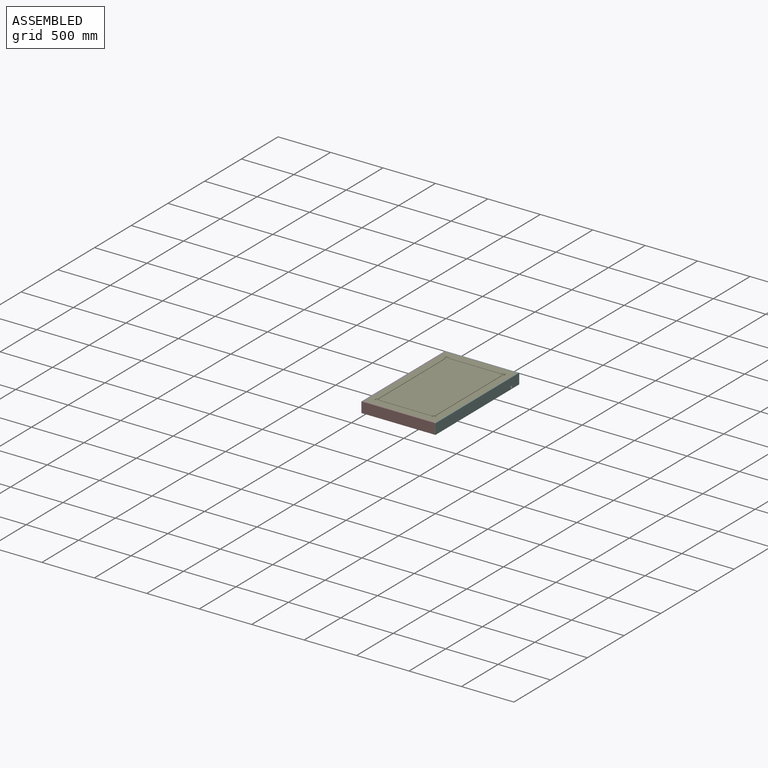
[diagram: assembled view]
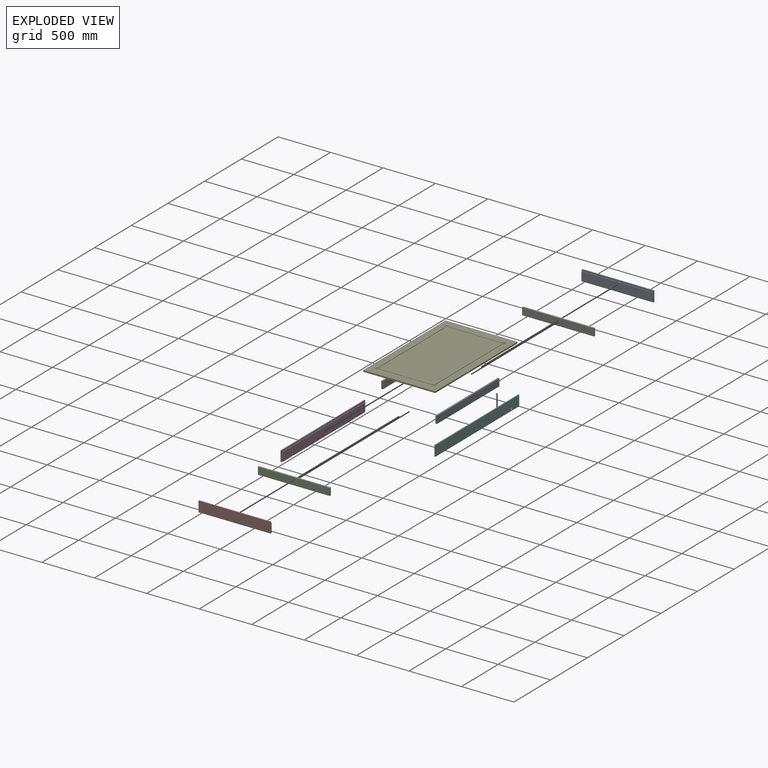
[diagram: exploded view]
GUIDED TOUR — MATED ASSEMBLY (Onshape document 020ee80df3ef35d1d4273c43, AutoMate assembly 020ee80df3ef35d1d4273c43_f7bb5acef65902458bad54ec_339e36d5d84220e9abc725ad_default)

This assembly has 9 components, labeled P0..P8 below (a component is one placed occurrence of a part; the same part can appear more than once), held together by 24 mates. A mate is a constraint between two components; its type names the relative motion it leaves free:
  PLANAR — leaves sliding in the plane through the listed point (normal = the listed direction) and rotation about that normal free.
Axis/direction vectors are unit vectors and 'through' points are millimeter coordinates, both in the assembly's world frame.

MATES
  1. PLANAR "Planar 12": P2 <-> P3, direction (0.000, 1.000, 0.000) through (-233.35, -524.04, 48.74) mm
  2. PLANAR "Planar 21": P8 <-> P2, direction (-1.000, 0.000, 0.000) through (320.65, -104.04, 48.74) mm
  3. PLANAR "Planar 18": P1 <-> P2, direction (0.000, 0.000, 1.000) through (-186.85, -104.04, 83.74) mm
  4. PLANAR "Planar 2": P7 <-> P3, direction (0.000, 1.000, 0.000) through (70.65, -659.04, 41.24) mm
  5. PLANAR "Planar 6": P5 <-> P7, direction (0.000, 0.000, 1.000) through (418.65, -104.04, 98.74) mm
  6. PLANAR "Planar 15": P6 <-> P5, direction (1.000, 0.000, 0.000) through (413.65, 323.46, 48.74) mm
  7. PLANAR "Planar 24": P4 <-> P0, direction (0.000, 1.000, 0.000) through (70.65, 455.96, 91.24) mm
  8. PLANAR "Planar 9": P0 <-> P5, direction (0.000, 0.000, 1.000) through (70.65, 460.96, 98.74) mm
  9. PLANAR "Planar 7": P0 <-> P5, direction (0.000, -1.000, 0.000) through (413.65, 450.96, 41.24) mm
  10. PLANAR "Planar 22": P4 <-> P3, direction (0.000, 0.000, -1.000) through (70.55, -104.20, 83.74) mm
  11. PLANAR "Planar 10": P2 <-> P3, direction (-1.000, 0.000, 0.000) through (-272.35, -531.54, 48.74) mm
  12. PLANAR "Planar 13": P6 <-> P5, direction (0.000, -1.000, 0.000) through (374.65, 315.96, 48.74) mm
  13. PLANAR "Planar 23": P4 <-> P5, direction (1.000, 0.000, 0.000) through (413.65, -104.04, 91.24) mm
  14. PLANAR "Planar 4": P5 <-> P7, direction (-1.000, 0.000, 0.000) through (413.65, -104.04, 79.75) mm
  15. PLANAR "Planar 14": P6 <-> P5, direction (0.000, 0.000, 1.000) through (374.65, 315.96, 83.74) mm
  16. PLANAR "Planar 20": P8 <-> P2, direction (0.000, -1.000, 0.000) through (328.15, -529.04, 48.74) mm
  17. PLANAR "Planar 8": P0 <-> P5, direction (1.000, 0.000, 0.000) through (413.65, 450.96, -1.26) mm
  18. PLANAR "Planar 5": P5 <-> P7, direction (0.000, -1.000, 0.000) through (411.15, -659.04, 41.24) mm
  19. PLANAR "Planar 3": P7 <-> P3, direction (-1.000, 0.000, 0.000) through (-272.35, -666.80, 46.50) mm
  20. PLANAR "Planar 16": P1 <-> P2, direction (0.000, -1.000, 0.000) through (-186.85, -529.04, 48.74) mm
  21. PLANAR "Planar 19": P8 <-> P6, direction (0.000, 0.000, 1.000) through (328.15, -104.04, 83.74) mm
  22. PLANAR "Planar 11": P2 <-> P3, direction (0.000, 0.000, 1.000) through (70.65, -531.61, 83.74) mm
  23. PLANAR "Planar 1": P7 <-> P3, direction (0.000, 0.000, 1.000) through (70.65, -669.04, 98.74) mm
  24. PLANAR "Planar 17": P1 <-> P2, direction (1.000, 0.000, 0.000) through (-179.35, -104.04, 48.74) mm

ASSEMBLY ORDER
  1. P8 — the base component [order verified]
  2. P1 [order verified]
  3. P3 [order verified]
  4. P4 [order verified]
  5. P5 [order verified]
  6. P6 [order verified]
  7. P2 [order verified]
  8. P0 [order verified]
  9. P7 [order verified]
Order-tag legend:
  [order verified] — this step's position reverses a verified removal order: the component was checked to insert without passing through the ones already placed.

Of the 9 components, 3 carry the full construction recipe — the FeatureScript program that regenerates the part's solid from scratch; the rest are supplied as boundary geometry only.
Each toured component is shown spotlighted twice — in the assembled view, then in the exploded view, where a leader line traces a displaced component back to its assembled socket (saturated green if recipe-attached, orange if geometry-only; every other component desaturated gray) — followed by its recipe or geometry summary and the mates that hold it.
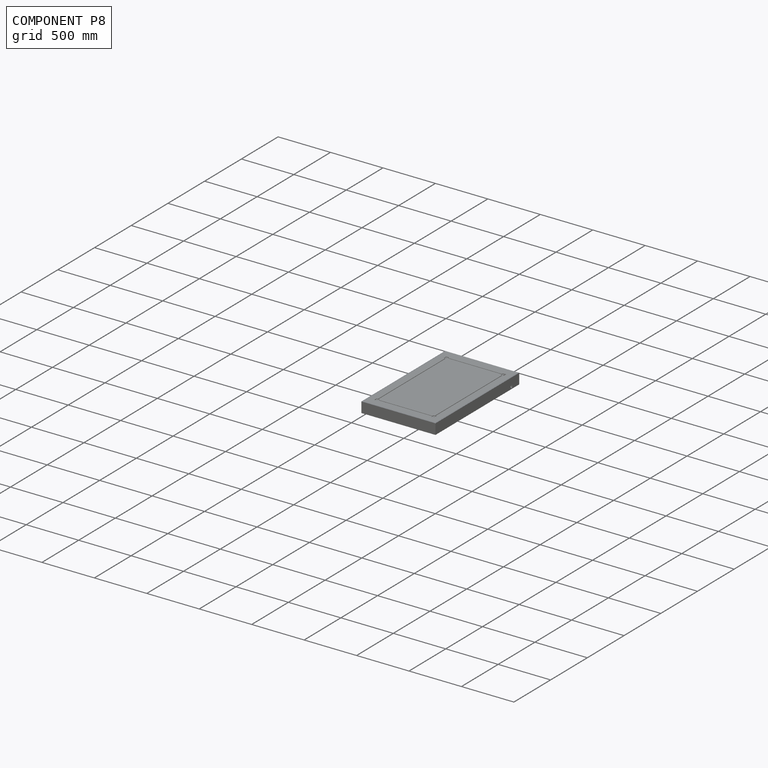
[diagram: component P8 — assembled]
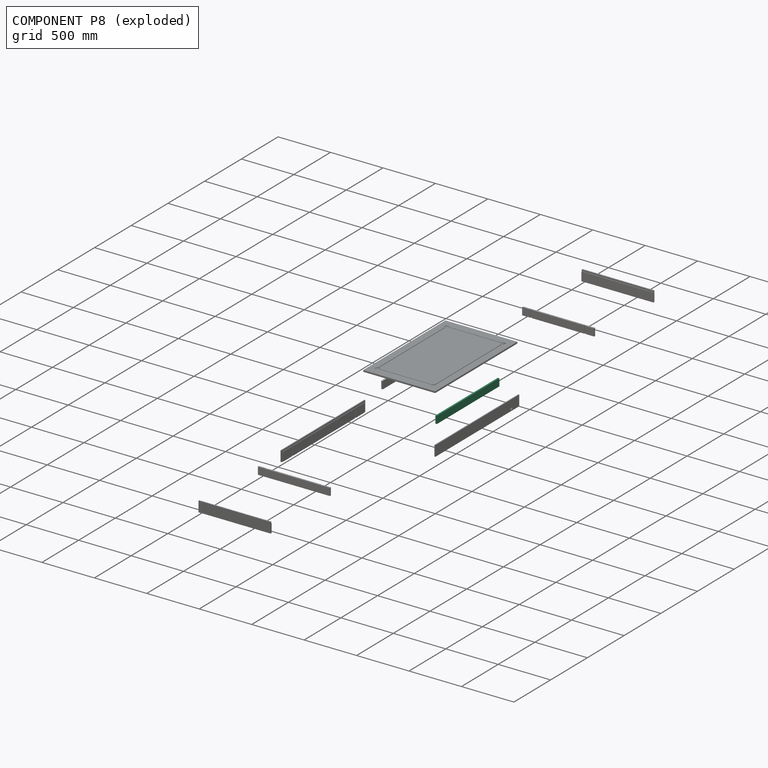
[diagram: component P8 — exploded]
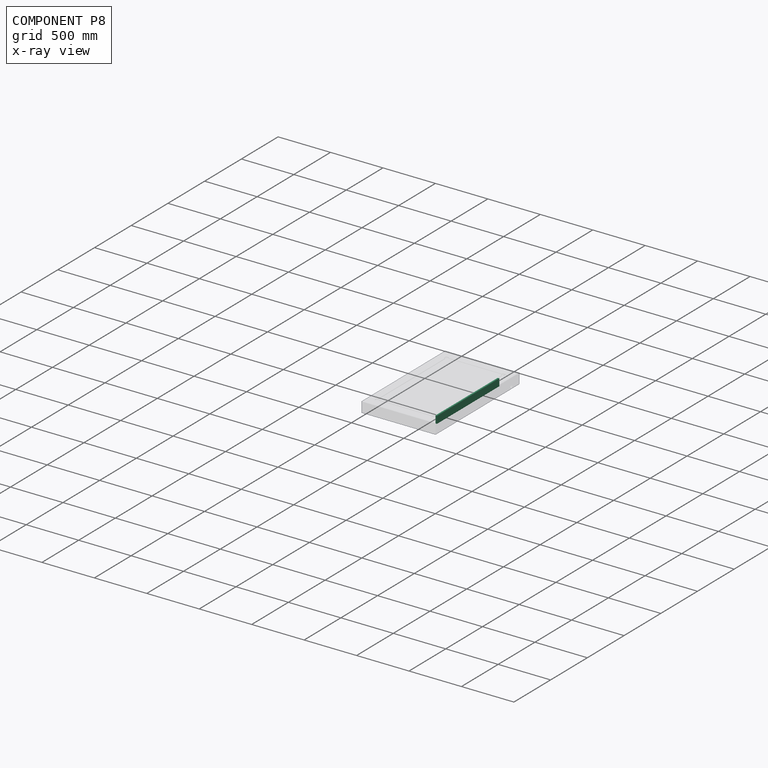
[diagram: component P8 — x-ray view]
COMPONENT P8 — same part as P1 (CADFS 00851103); its construction recipe is shown at P1.
Held by: PLANAR mate "Planar 21" to P2; PLANAR mate "Planar 20" to P2; PLANAR mate "Planar 19" to P6.
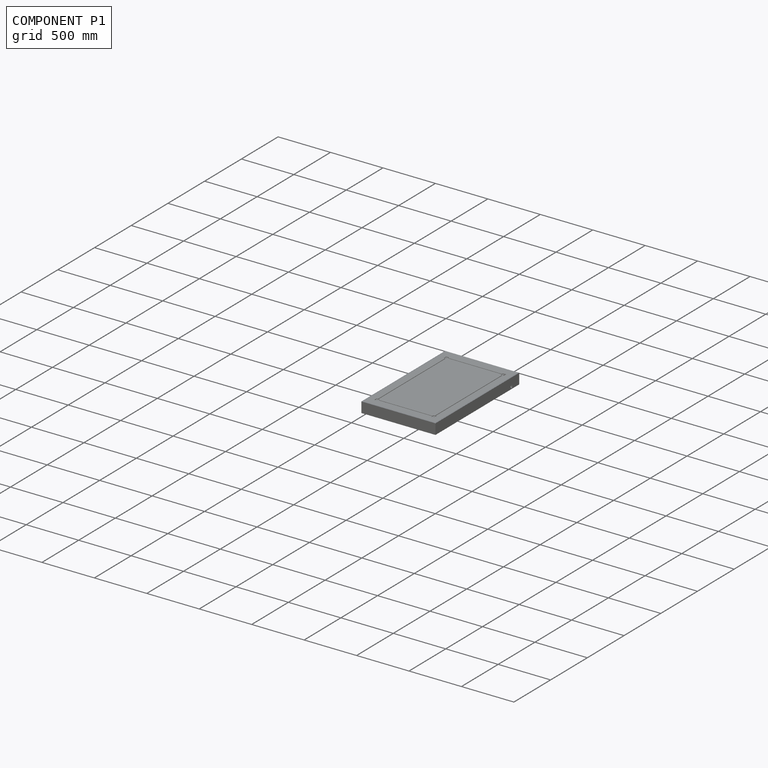
[diagram: component P1 — assembled]
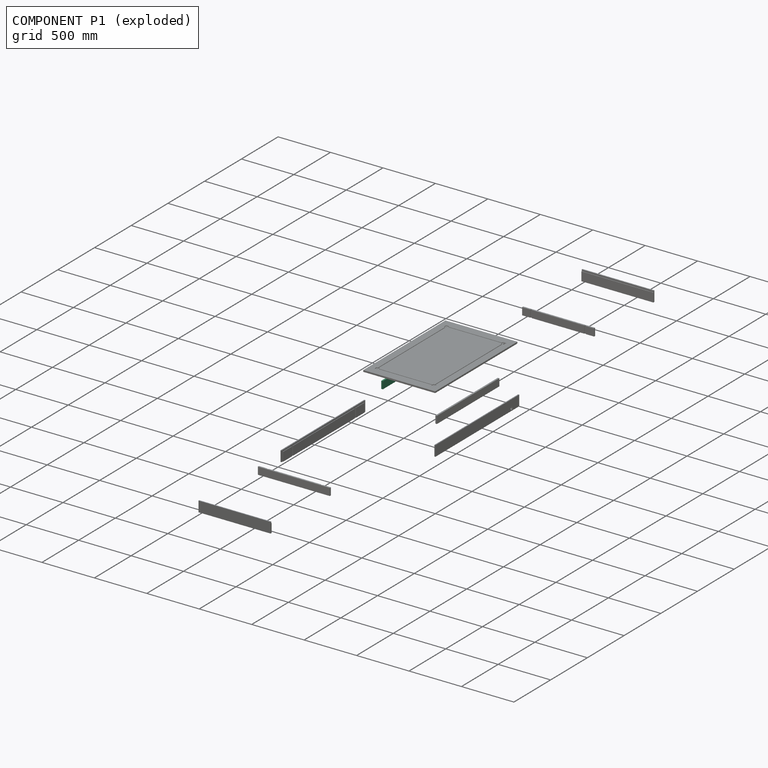
[diagram: component P1 — exploded]
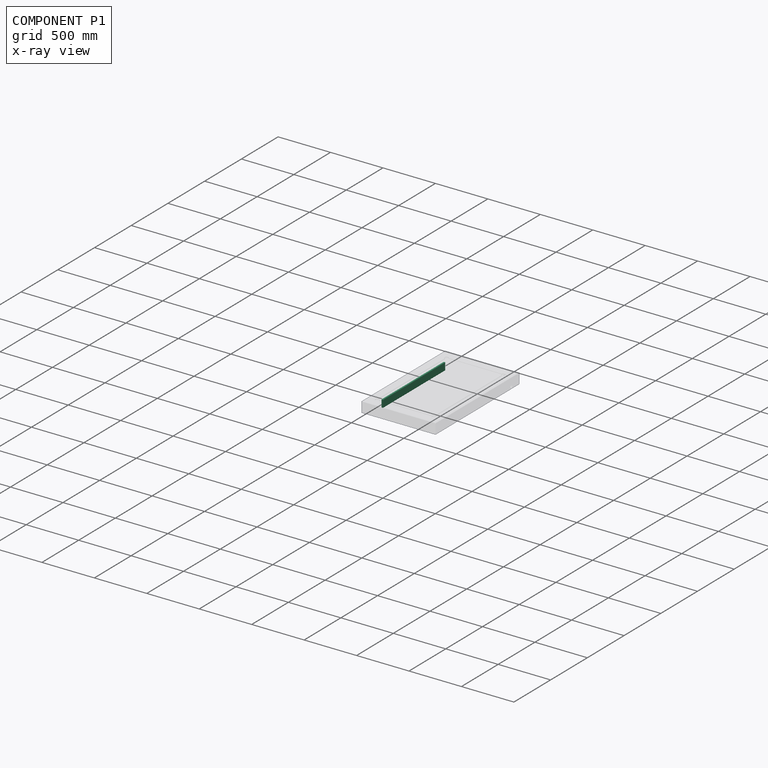
[diagram: component P1 — x-ray view]
COMPONENT P1 — recipe-attached (CADFS 00851103, mesh-verified: the recipe's output STEP matches this component's geometry to below the mesh-comparison resolution (tessellation chordal tolerance ~1.28 mm)).
Held by: PLANAR mate "Planar 18" to P2; PLANAR mate "Planar 16" to P2; PLANAR mate "Planar 17" to P2.
Construction recipe (FeatureScript — the CAD program that rebuilds this solid; sketch coordinates are in the units given by the * unit suffixes, e.g. mm):

FeatureScript 1511;
import(path : "onshape/std/geometry.fs", version : "1511.0");
import(path : "onshape/std/common.fs", version : "1511.0");
const mm = millimeter;
const VERTEX = EntityType.VERTEX;
const EDGE = EntityType.EDGE;
const FACE = EntityType.FACE;
const BODY = EntityType.BODY;
function v(x, y){return vector(x, y);}
function OD(order){return orderDisambiguation(order);}
function OSD(set){return originalSetDisambiguation(set);}
function TD(topology){return topologyDisambiguation(topology);}
function TDD(query){return trueDependencyDisambiguation(query);}
function sQuery(a, b, c) {return sketchEntityQuery(a, b, c);}

annotation { "Feature Type Name" : "Feature", "Feature Type Description" : "" }
export const myFeature = defineFeature(function(context is Context, id is Id, definition is map)
    precondition{}
    {
        {
            var Q0;
            Q0=qCreatedBy(makeId("Top.planeOp"),FACE);
            var sketch = newSketch(context, id + "F0", { "sketchPlane" : qUnion([Q0])});
            skLineSegment(sketch, "E0.bottom", {"start": v(-424.9, 7.5) * mm, "end": v(424.9, 7.5) * mm});
            skLineSegment(sketch, "E0.top", {"start": v(-424.9, -7.5) * mm, "end": v(424.9, -7.5) * mm});
            skLineSegment(sketch, "E0.left", {"start": v(-424.9, 7.5) * mm, "end": v(-424.9, -7.5) * mm});
            skLineSegment(sketch, "E0.right", {"start": v(424.9, 7.5) * mm, "end": v(424.9, -7.5) * mm});
            skSolve(sketch);
        }
        {
            var Q0;
            Q0=makeQuery(id+"F0.imprint","IMPRINT",FACE,{"disambiguationData":[TD([[makeQuery(id+"F0.imprint","IMPRINT",EDGE,{"derivedFrom":sQuery(id+"F0.wireOp",EDGE,"E0.bottom")}),-1.0]])]});
            extrude(context, id + "F1", {"entities" : qUnion([Q0]), "endBound" : BoundingType.SYMMETRIC, "depth" : 70 * mm, "offsetDistance" : 25 * mm});
        }
        {
            var Q0;
            Q0=qCreatedBy(makeId("Front.planeOp"),FACE);
            cPlane(context, id + "F2", {"entities" : qUnion([Q0]), "cplaneType" : CPlaneType.OFFSET, "offset" : 25 * mm, "oppositeDirection" : true, "width" : 150 * mm, "height" : 150 * mm});
        }
    });
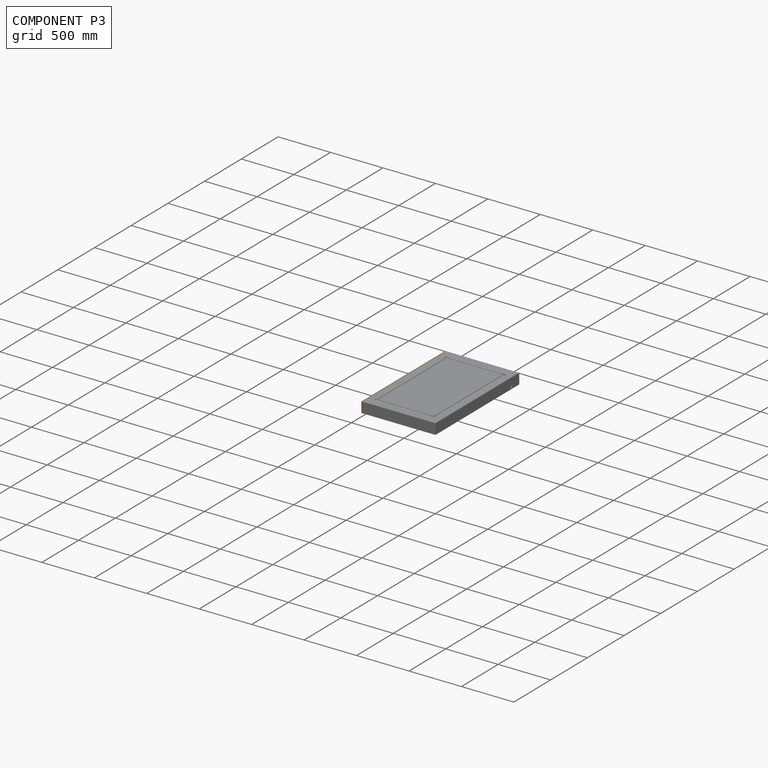
[diagram: component P3 — assembled]
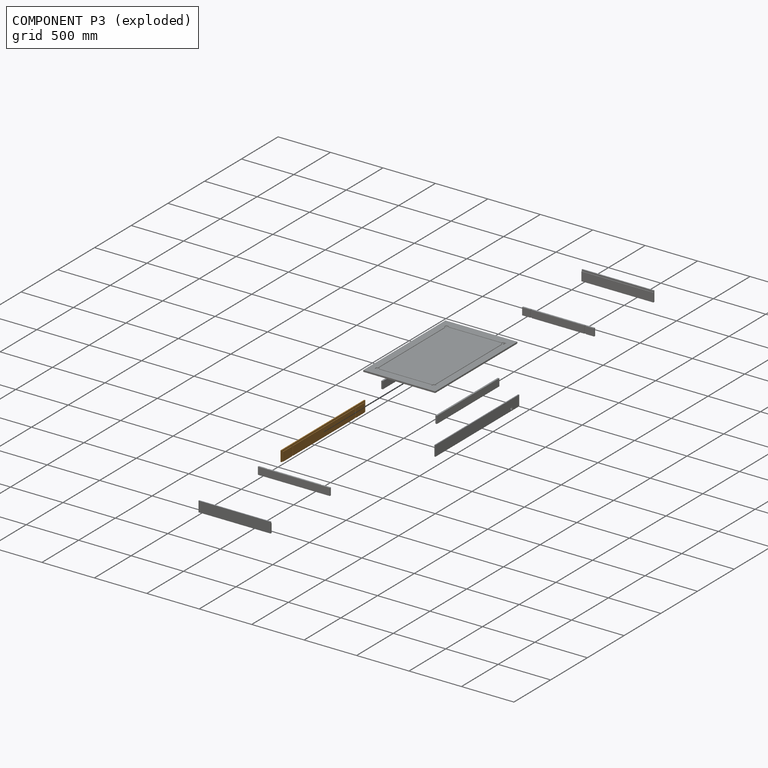
[diagram: component P3 — exploded]
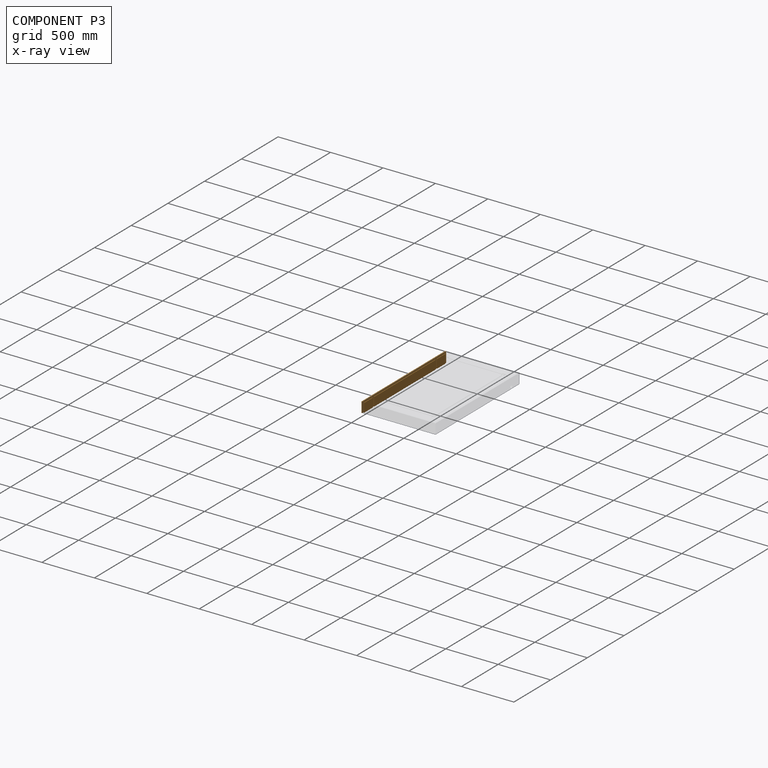
[diagram: component P3 — x-ray view]
COMPONENT P3 — geometry summary (no construction recipe available for this part):
  bounding box: 1140.0 x 100.0 x 15.0 mm
  B-rep topology: 1 solid, 18 faces, 96 edges
  volume: 1599000 mm^3 (94% of its bounding box)
  symmetry: 2-fold rotationally symmetric about the x axis; 2-fold rotationally symmetric about the y axis; 2-fold rotationally symmetric about the z axis; mirror-symmetric across its x mid-plane, y mid-plane, z mid-plane
Held by: PLANAR mate "Planar 12" to P2; PLANAR mate "Planar 2" to P7; PLANAR mate "Planar 22" to P4; PLANAR mate "Planar 10" to P2; PLANAR mate "Planar 3" to P7; PLANAR mate "Planar 11" to P2; PLANAR mate "Planar 1" to P7.
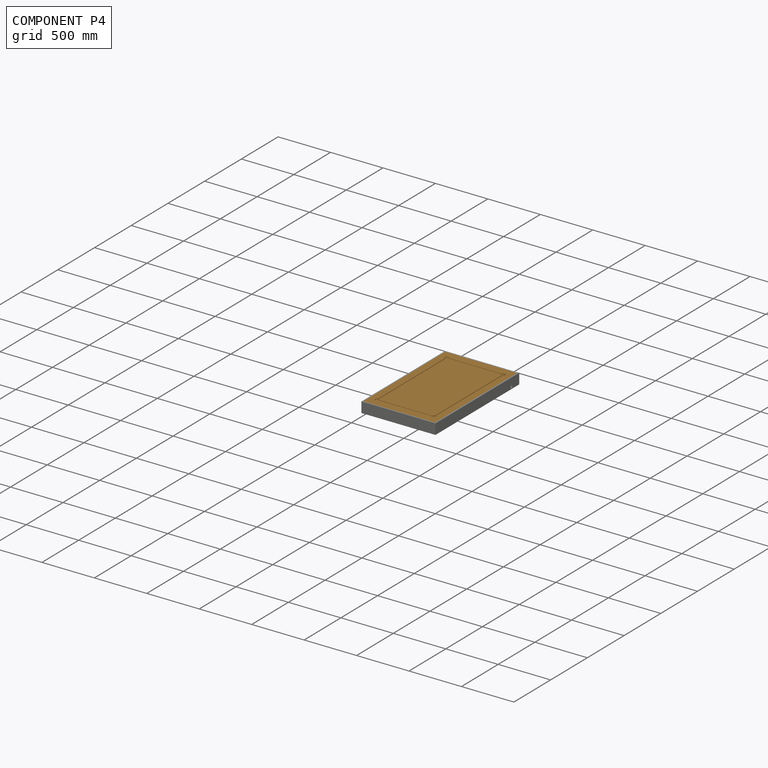
[diagram: component P4 — assembled]
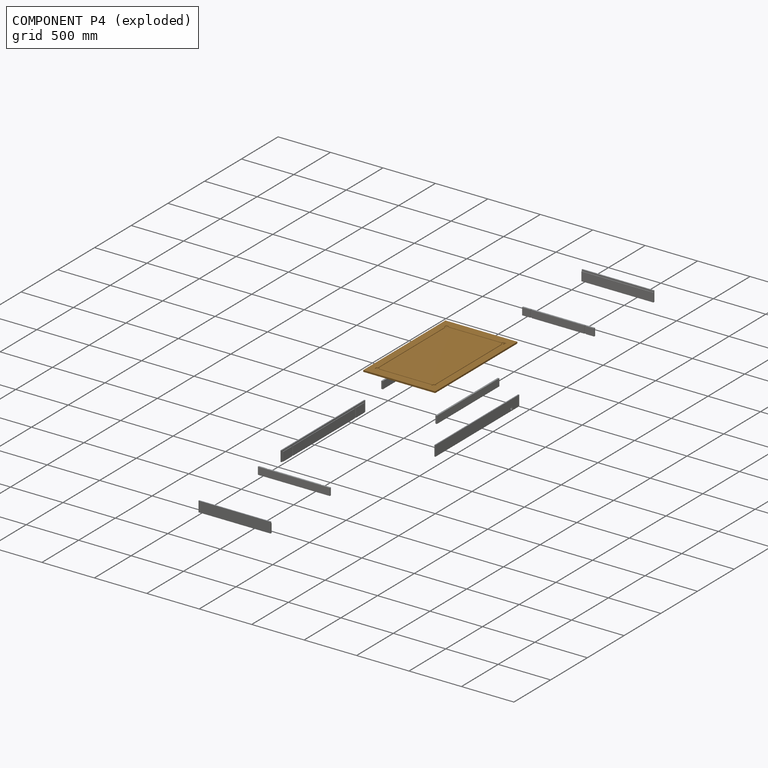
[diagram: component P4 — exploded]
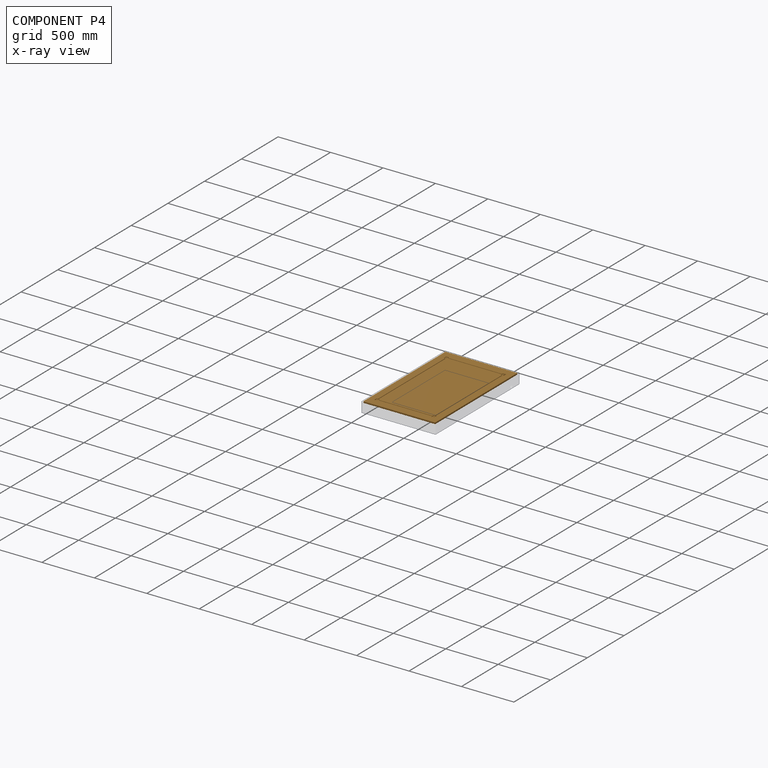
[diagram: component P4 — x-ray view]
COMPONENT P4 — geometry summary (no construction recipe available for this part):
  bounding box: 1120.0 x 686.0 x 15.0 mm
  B-rep topology: 1 solid, 67 faces, 378 edges
  volume: 11424114 mm^3 (99% of its bounding box)
  symmetry: 2-fold rotationally symmetric about the x axis; 2-fold rotationally symmetric about the y axis; 2-fold rotationally symmetric about the z axis; mirror-symmetric across its x mid-plane, y mid-plane, z mid-plane
Held by: PLANAR mate "Planar 24" to P0; PLANAR mate "Planar 22" to P3; PLANAR mate "Planar 23" to P5.
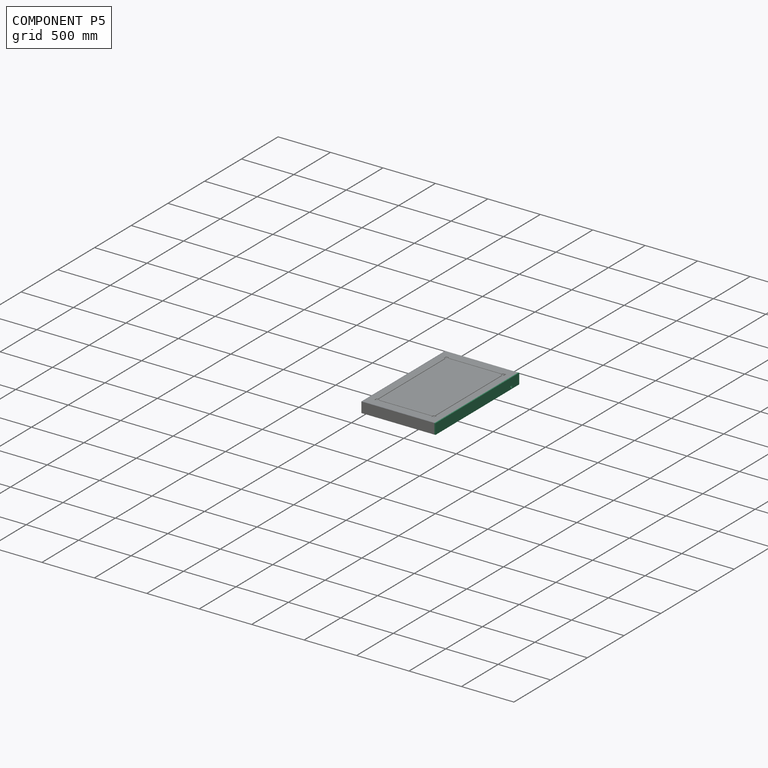
[diagram: component P5 — assembled]
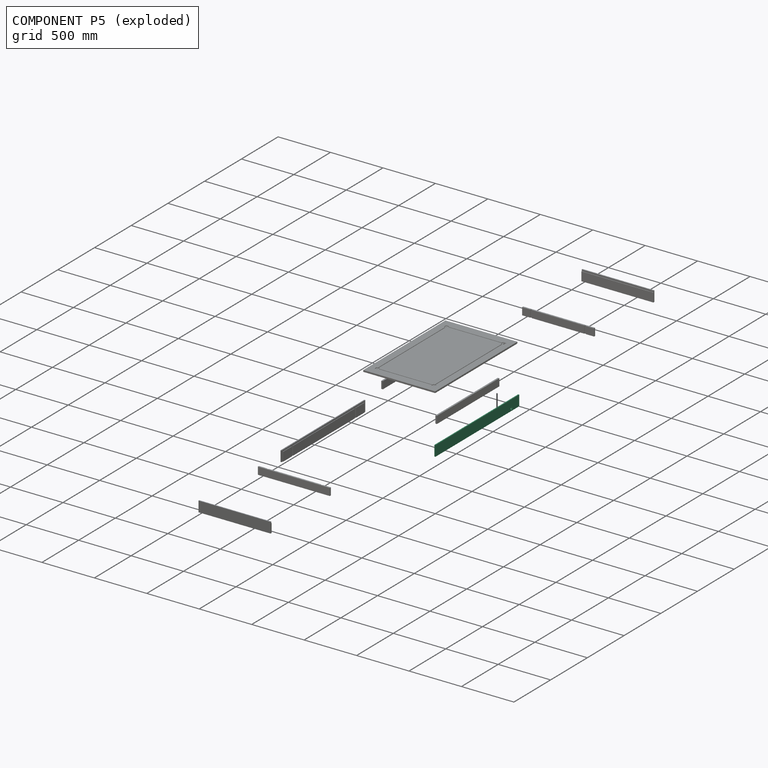
[diagram: component P5 — exploded]
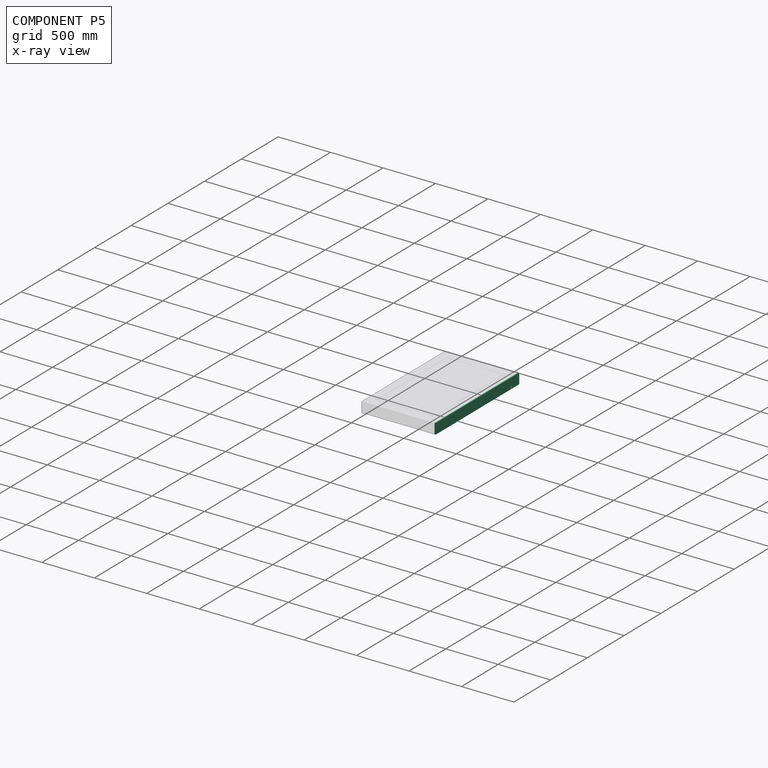
[diagram: component P5 — x-ray view]
COMPONENT P5 — recipe-attached (CADFS 00848395, mesh-verified: the recipe's output STEP matches this component's geometry to below the mesh-comparison resolution (tessellation chordal tolerance ~1.72 mm)).
Held by: PLANAR mate "Planar 6" to P7; PLANAR mate "Planar 15" to P6; PLANAR mate "Planar 9" to P0; PLANAR mate "Planar 7" to P0; PLANAR mate "Planar 13" to P6; PLANAR mate "Planar 23" to P4; PLANAR mate "Planar 4" to P7; PLANAR mate "Planar 14" to P6; PLANAR mate "Planar 8" to P0; PLANAR mate "Planar 5" to P7.
Construction recipe (FeatureScript — the CAD program that rebuilds this solid; sketch coordinates are in the units given by the * unit suffixes, e.g. mm):

FeatureScript 1511;
import(path : "onshape/std/geometry.fs", version : "1511.0");
import(path : "onshape/std/common.fs", version : "1511.0");
const mm = millimeter;
const VERTEX = EntityType.VERTEX;
const EDGE = EntityType.EDGE;
const FACE = EntityType.FACE;
const BODY = EntityType.BODY;
function v(x, y){return vector(x, y);}
function OD(order){return orderDisambiguation(order);}
function OSD(set){return originalSetDisambiguation(set);}
function TD(topology){return topologyDisambiguation(topology);}
function TDD(query){return trueDependencyDisambiguation(query);}
function sQuery(a, b, c) {return sketchEntityQuery(a, b, c);}

annotation { "Feature Type Name" : "Feature", "Feature Type Description" : "" }
export const myFeature = defineFeature(function(context is Context, id is Id, definition is map)
    precondition{}
    {
        {
            var Q0;
            Q0=qCreatedBy(makeId("Top.planeOp"),FACE);
            var sketch = newSketch(context, id + "F0", { "sketchPlane" : qUnion([Q0])});
            skLineSegment(sketch, "E0", {"start": v(0, 0) * mm, "end": v(0, -555) * mm});
            skLineSegment(sketch, "E1", {"start": v(0, -555) * mm, "end": v(-5, -555) * mm});
            skLineSegment(sketch, "E2", {"start": v(-5, -555) * mm, "end": v(-5, -570) * mm});
            skLineSegment(sketch, "E3", {"start": v(-5, -570) * mm, "end": v(-15, -570) * mm});
            skLineSegment(sketch, "E4", {"start": v(-15, -570) * mm, "end": v(-15, 0) * mm});
            skLineSegment(sketch, "E5", {"start": v(-15, 0) * mm, "end": v(0, 0) * mm});
            skSolve(sketch);
        }
        {
            var Q0;
            Q0=qSketchRegion(id+"F0",true);
            extrude(context, id + "F1", {"entities" : qUnion([Q0]), "endBound" : BoundingType.SYMMETRIC, "depth" : 100 * mm, "offsetDistance" : 25 * mm});
        }
        {
            var Q0;
            Q0=makeQuery(id+"F1.opExtrude","SWEPT_FACE",FACE,{"disambiguationData":[OSD([sQuery(id+"F0.wireOp",EDGE,"E0")])]});
            var sketch = newSketch(context, id + "F2", { "sketchPlane" : qUnion([Q0])});
            skLineSegment(sketch, "E6", {"start": v(-435.2, -50) * mm, "end": v(-435.2, 34.8) * mm});
            skLineSegment(sketch, "E7", {"start": v(-420, 34.8) * mm, "end": v(-420, -50) * mm});
            skLineSegment(sketch, "E8", {"start": v(-420, -50) * mm, "end": v(-435.2, -50) * mm});
            skLineSegment(sketch, "E9", {"start": v(-420, 34.8) * mm, "end": v(0, 34.8) * mm});
            skLineSegment(sketch, "E10", {"start": v(0, 34.8) * mm, "end": v(0, 50) * mm});
            skLineSegment(sketch, "E11", {"start": v(0, 50) * mm, "end": v(-555, 50) * mm});
            skLineSegment(sketch, "E12", {"start": v(-555, 50) * mm, "end": v(-555, 34.8) * mm});
            skLineSegment(sketch, "E13", {"start": v(-555, 34.8) * mm, "end": v(-435.2, 34.8) * mm});
            skSolve(sketch);
        }
        {
            var Q0;
            Q0=qSketchRegion(id+"F2",true);
            extrude(context, id + "F3", {"entities" : qUnion([Q0]), "operationType" : NewBodyOperationType.REMOVE, "oppositeDirection" : true, "depth" : 5 * mm, "offsetDistance" : 25 * mm});
        }
        {
            var Q0;
            Q0=makeQuery(id+"F1.opExtrude","SWEPT_BODY",BODY,{"disambiguationData":[OSD([sQuery(id+"F0.wireOp",EDGE,"E0"),sQuery(id+"F0.wireOp",EDGE,"E1"),sQuery(id+"F0.wireOp",EDGE,"E2"),sQuery(id+"F0.wireOp",EDGE,"E3"),sQuery(id+"F0.wireOp",EDGE,"E4"),sQuery(id+"F0.wireOp",EDGE,"E5")])]});
            var Q1;
            Q1=makeQuery(id+"F1.opExtrude","SWEPT_FACE",FACE,{"disambiguationData":[OSD([sQuery(id+"F0.wireOp",EDGE,"E5")])]});
            mirror(context, id + "F4", {"operationType" : NewBodyOperationType.ADD, "entities" : qUnion([Q0]), "mirrorPlane" : qUnion([Q1])});
        }
        {
            var Q0;
            {var subQ0=sQuery(id+"F0.wireOp",EDGE,"E1");var subQ1=sQuery(id+"F0.wireOp",EDGE,"E0");Q0=makeQuery(id+"F3.boolean.opBoolean","SPLIT",FACE,{"disambiguationData":[TD([makeQuery(id+"F1.opExtrude","SWEPT_FACE",FACE,{"disambiguationData":[OSD([subQ0])]})])],"derivedFrom":makeQuery(id+"F1.opExtrude","SWEPT_FACE",FACE,{"disambiguationData":[OSD([subQ1])]})});}
            var sketch = newSketch(context, id + "F5", { "sketchPlane" : qUnion([Q0])});
            skLineSegment(sketch, "E14", {"start": v(-478.2, -37) * mm, "end": v(-478.2, -20) * mm});
            skArc(sketch, "E15", {"start": v(-478.2, -20) * mm, "mid": v(-477.32, -17.88) * mm, "end": v(-475.2, -17) * mm});
            skLineSegment(sketch, "E16", {"start": v(-475.2, -17) * mm, "end": v(-458.2, -17) * mm});
            skArc(sketch, "E17", {"start": v(-458.2, -17) * mm, "mid": v(-456.08, -17.88) * mm, "end": v(-455.2, -20) * mm});
            skLineSegment(sketch, "E18", {"start": v(-455.2, -20) * mm, "end": v(-455.2, -37) * mm});
            skArc(sketch, "E19", {"start": v(-478.2, -37) * mm, "mid": v(-477.32, -39.12) * mm, "end": v(-475.2, -40) * mm});
            skLineSegment(sketch, "E20", {"start": v(-475.2, -40) * mm, "end": v(-458.2, -40) * mm});
            skArc(sketch, "E21", {"start": v(-458.2, -40) * mm, "mid": v(-456.08, -39.12) * mm, "end": v(-455.2, -37) * mm});
            skSolve(sketch);
        }
        {
            var Q0;
            Q0 = qSketchRegion(id + "F5", true);
            extrude(context, id + "F6", {"entities" : qUnion([Q0]), "operationType" : NewBodyOperationType.REMOVE, "endBound" : BoundingType.UP_TO_NEXT, "oppositeDirection" : true, "depth" : 25 * mm, "offsetDistance" : 25 * mm});
        }
        {
            var Q0;
            Q0=qCreatedBy(makeId("Right.planeOp"),FACE);
            cPlane(context, id + "F7", {"entities" : qUnion([Q0]), "cplaneType" : CPlaneType.OFFSET, "offset" : 25 * mm, "width" : 150 * mm, "height" : 150 * mm});
        }
    });
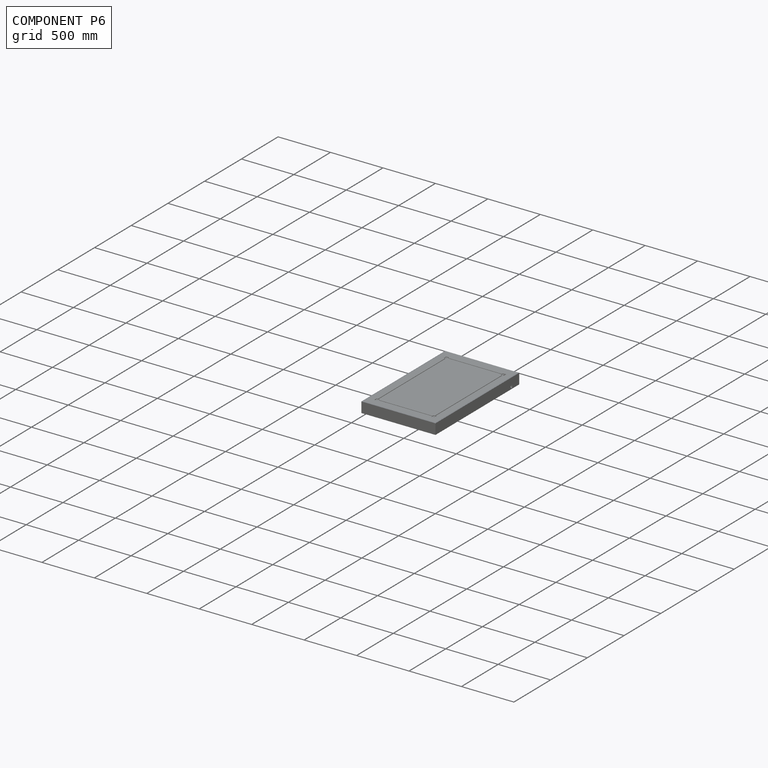
[diagram: component P6 — assembled]
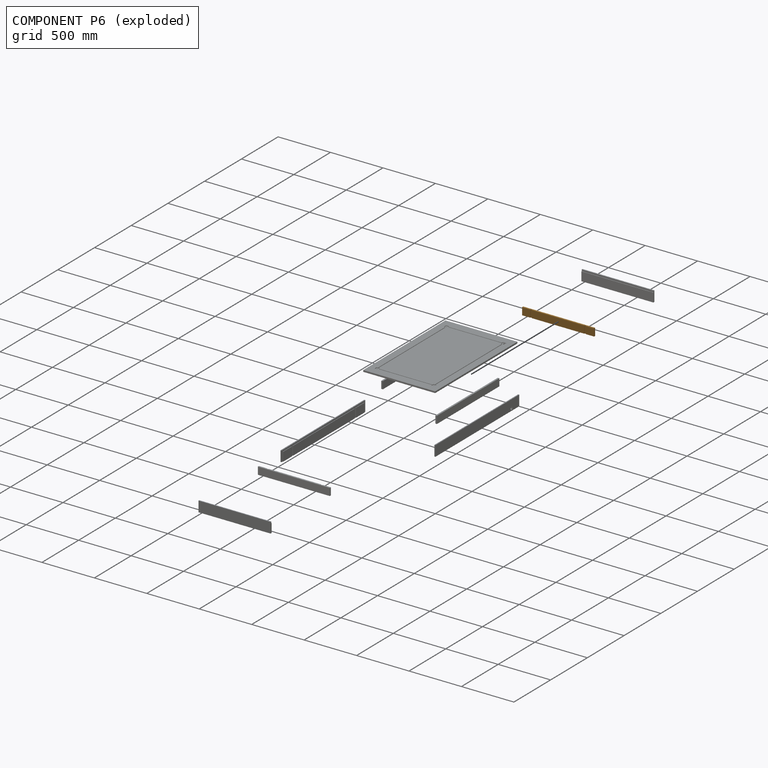
[diagram: component P6 — exploded]
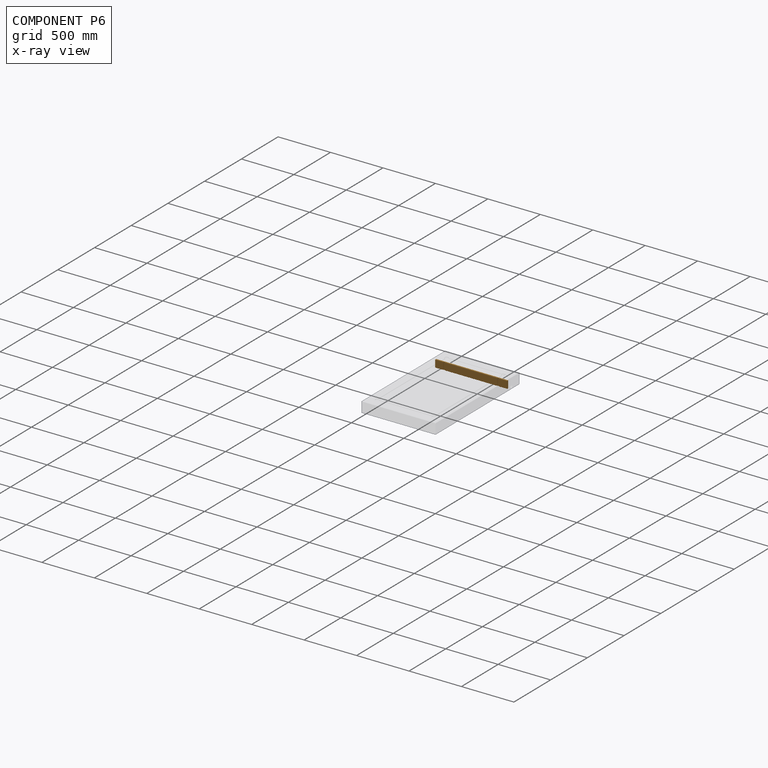
[diagram: component P6 — x-ray view]
COMPONENT P6 — geometry summary (no construction recipe available for this part):
  bounding box: 686.0 x 70.0 x 15.0 mm
  B-rep topology: 1 solid, 14 faces, 72 edges
  volume: 709800 mm^3 (99% of its bounding box)
  symmetry: 2-fold rotationally symmetric about the y axis; mirror-symmetric across its x mid-plane, z mid-plane
Held by: PLANAR mate "Planar 15" to P5; PLANAR mate "Planar 13" to P5; PLANAR mate "Planar 14" to P5; PLANAR mate "Planar 19" to P8.
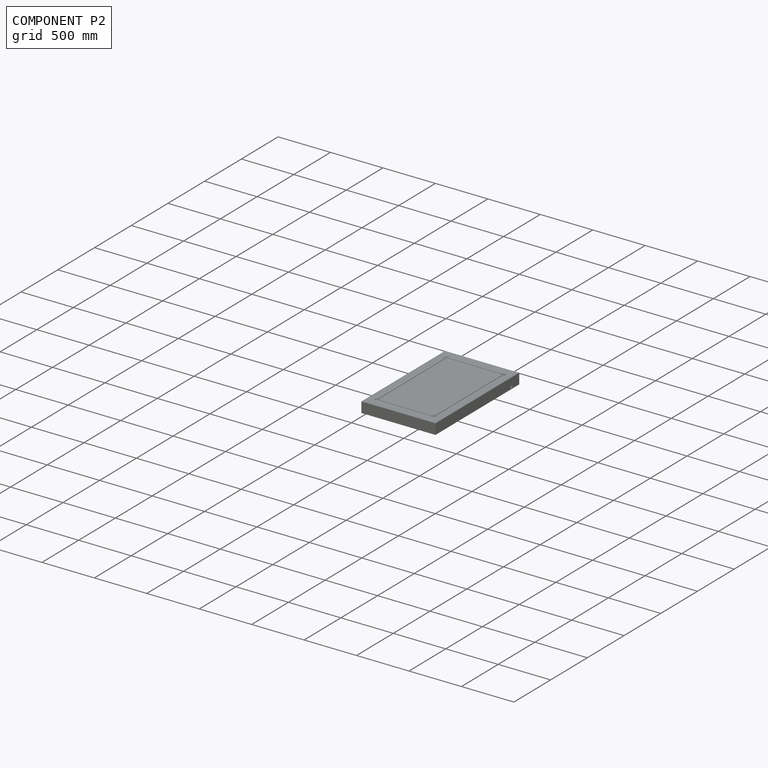
[diagram: component P2 — assembled]
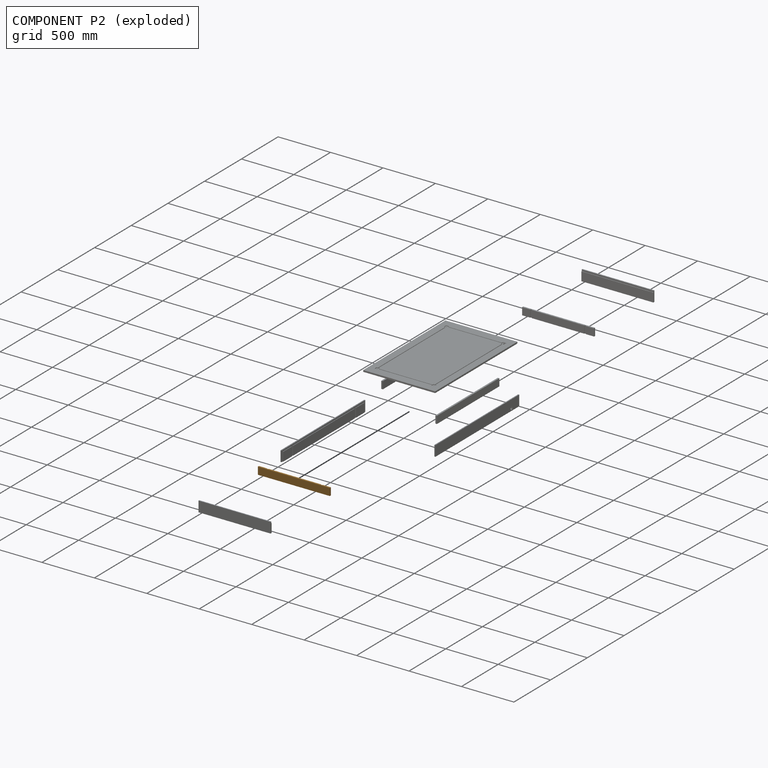
[diagram: component P2 — exploded]
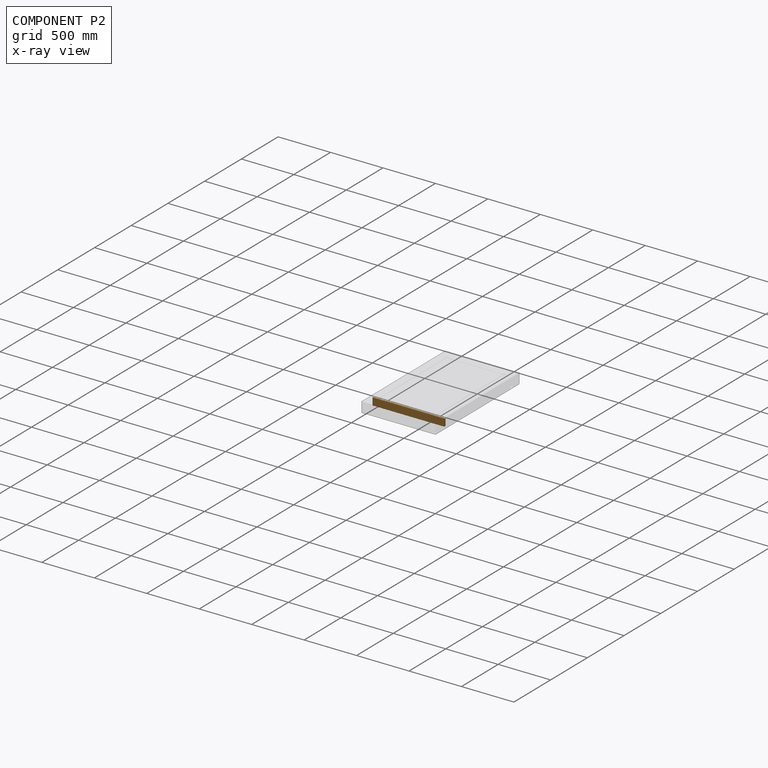
[diagram: component P2 — x-ray view]
COMPONENT P2 — geometry summary (no construction recipe available for this part):
  bounding box: 686.0 x 70.0 x 15.0 mm
  B-rep topology: 1 solid, 14 faces, 72 edges
  volume: 709800 mm^3 (99% of its bounding box)
  symmetry: 2-fold rotationally symmetric about the y axis; mirror-symmetric across its x mid-plane, z mid-plane
Held by: PLANAR mate "Planar 12" to P3; PLANAR mate "Planar 21" to P8; PLANAR mate "Planar 18" to P1; PLANAR mate "Planar 10" to P3; PLANAR mate "Planar 20" to P8; PLANAR mate "Planar 16" to P1; PLANAR mate "Planar 11" to P3; PLANAR mate "Planar 17" to P1.
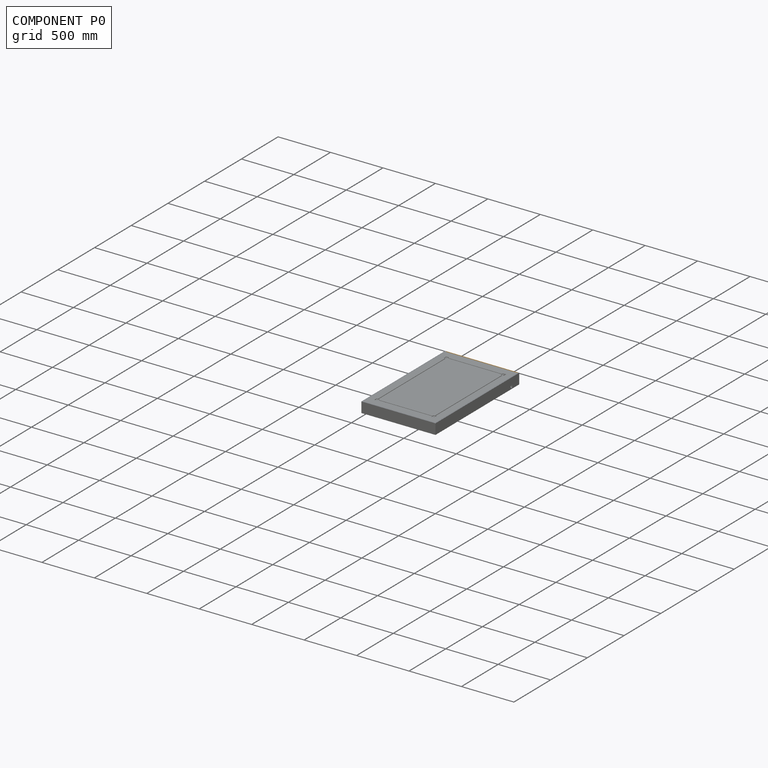
[diagram: component P0 — assembled]
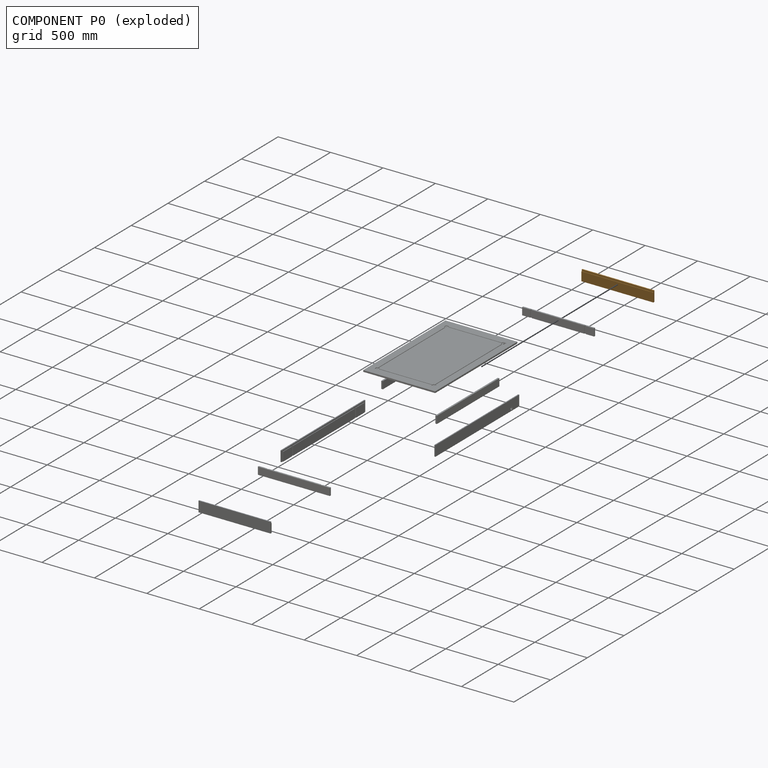
[diagram: component P0 — exploded]
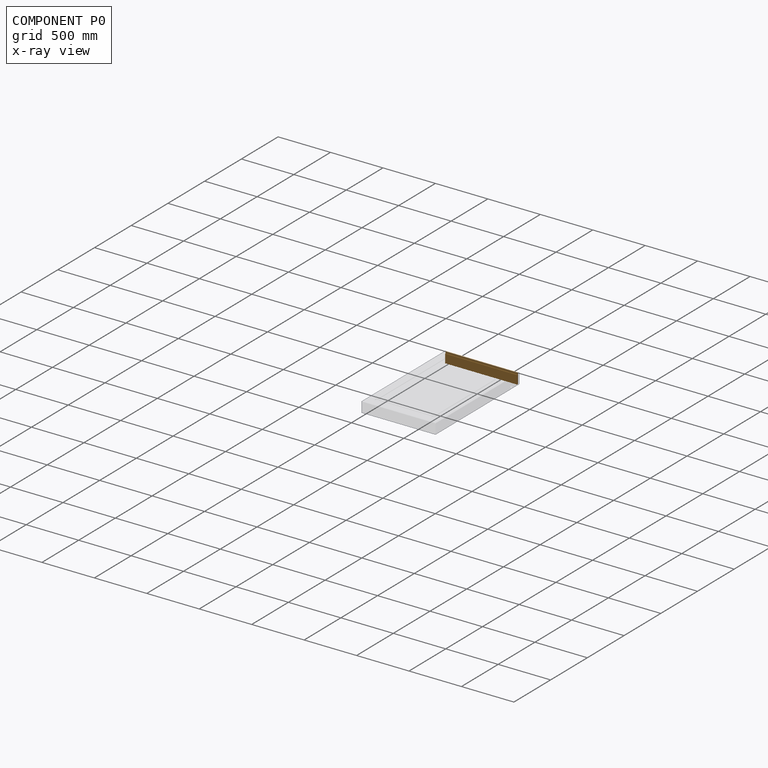
[diagram: component P0 — x-ray view]
COMPONENT P0 — geometry summary (no construction recipe available for this part):
  bounding box: 686.0 x 100.0 x 15.0 mm
  B-rep topology: 1 solid, 8 faces, 36 edges
  volume: 977550 mm^3 (95% of its bounding box)
  symmetry: mirror-symmetric across its x mid-plane
Held by: PLANAR mate "Planar 24" to P4; PLANAR mate "Planar 9" to P5; PLANAR mate "Planar 7" to P5; PLANAR mate "Planar 8" to P5.
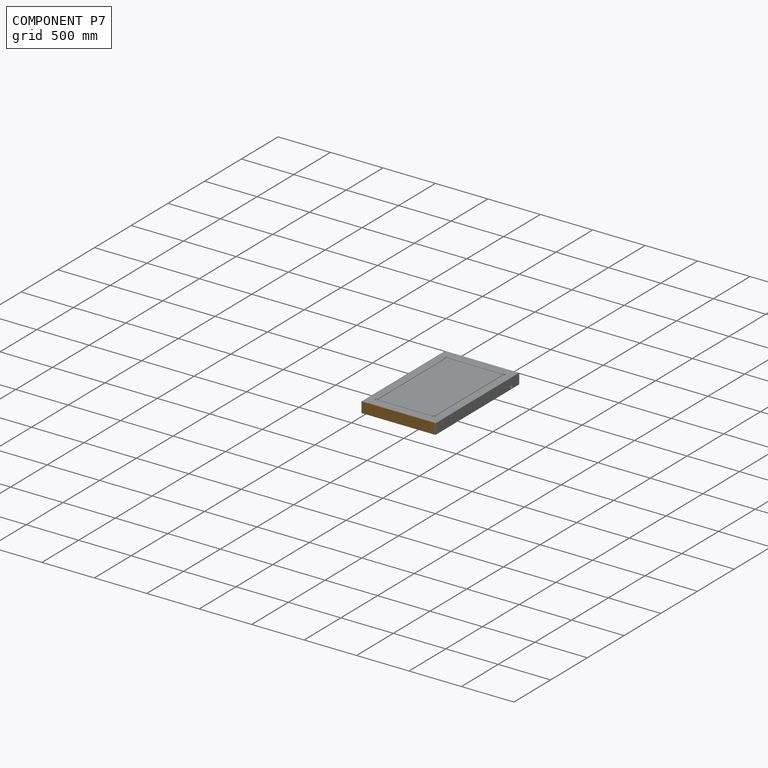
[diagram: component P7 — assembled]
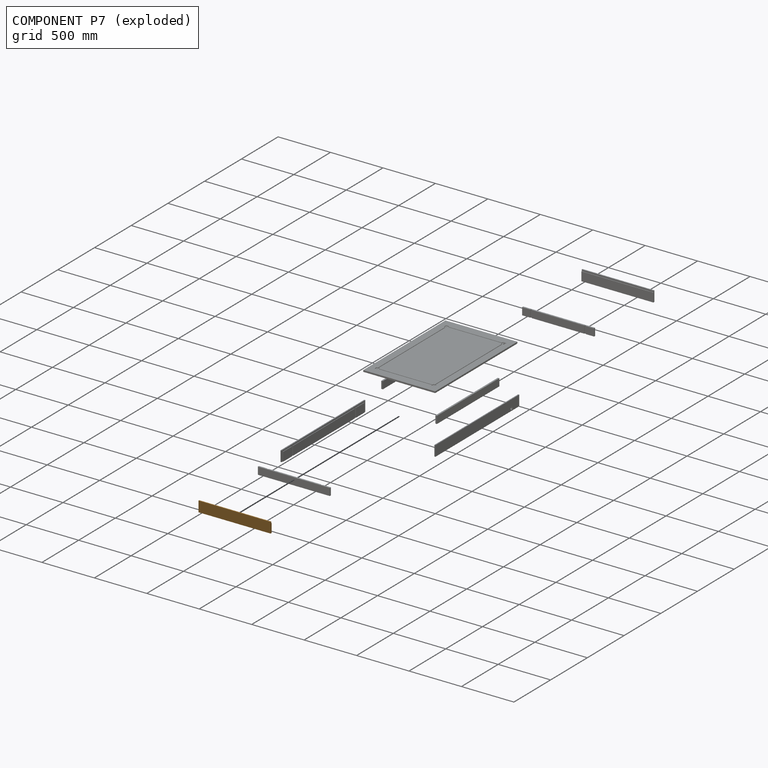
[diagram: component P7 — exploded]
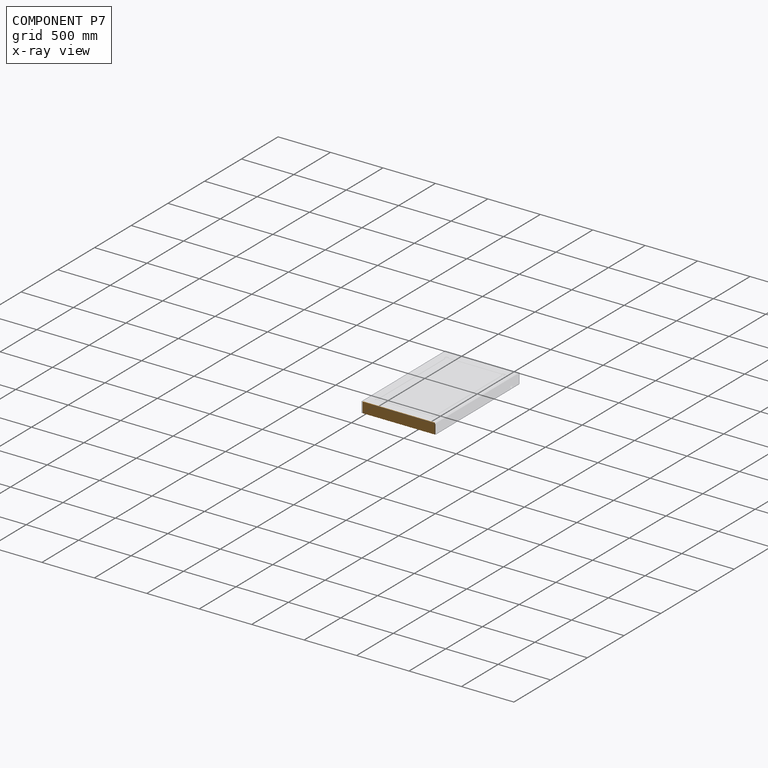
[diagram: component P7 — x-ray view]
COMPONENT P7 — geometry summary (no construction recipe available for this part):
  bounding box: 686.0 x 100.0 x 15.0 mm
  B-rep topology: 1 solid, 8 faces, 36 edges
  volume: 977550 mm^3 (95% of its bounding box)
  symmetry: mirror-symmetric across its x mid-plane
Held by: PLANAR mate "Planar 2" to P3; PLANAR mate "Planar 6" to P5; PLANAR mate "Planar 4" to P5; PLANAR mate "Planar 5" to P5; PLANAR mate "Planar 3" to P3; PLANAR mate "Planar 1" to P3.
PROVENANCE & LICENSES
Assembly (occurrences, transforms, mates, per-part STEP geometry): AutoMate dataset, Zenodo record 7776208, CC0.
Construction recipes: CADFS (HuggingFace VladPyatov/CADFS, CC-BY-4.0, layered over the ABC dataset), FeatureScript reconstruction programs keyed by ABC model id.
Join: ABC meta listings map ABC model id -> Onshape documentId; within a shared document, parts are matched by geometric signature (bounding-box dims + volume at 0.1% relative tolerance, exact B-rep face/solid counts).
Verification: 3 of this assembly's 9 components carry a recipe attachment, and every attachment is mesh-verified: the CADFS STEP and the AutoMate member STEP were compared as meshes in their shared local frame (symmetric sampled-point-to-mesh distance); worst across the 3 attachments: below the mesh-comparison resolution (tessellation chordal tolerance ~1.72 mm) on a 1144 mm part.
Renders: orthographic iso camera (az 35 / el 25); the floor grid conveys scale (grid pitch printed in each image; no ruler). In the exploded view each component is displaced by its stored offset vector: the offsets alone carry the explosion direction (mate normal/axis signs are not orientation cues and do not encode it), and separation distances are assigned per mate-chain, not proportionally to assembly-order depth.
